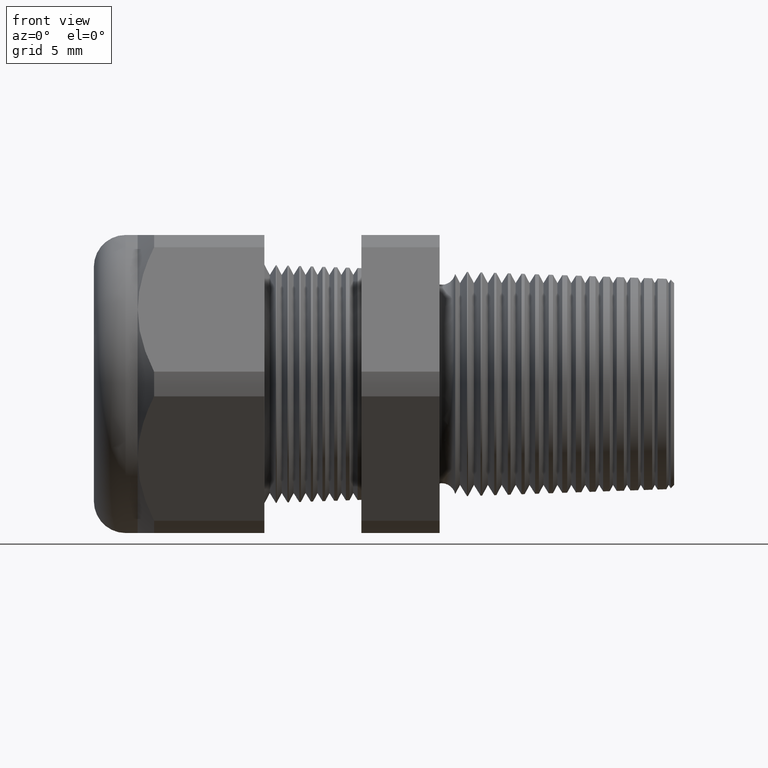
[diagram: clean part render]
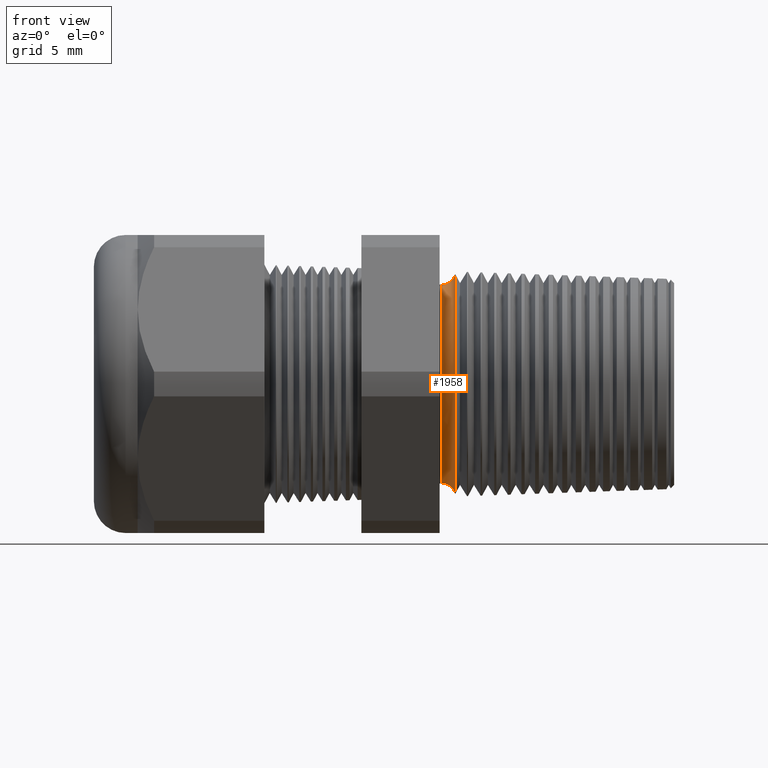
[diagram: same view with one face highlighted and labeled with its STEP entity id]
A machine part, front view. The second image highlights one B-rep face of the part: STEP entity #1958.
In plain terms, the highlighted toroidal blend (fillet) surface has major radius 7.229 mm and minor (blend) radius 0.889 mm.
Its self-contained STEP definition (entity closure, byte-faithful):
#1920 = EDGE_CURVE ( 'NONE', #1921, #1992, #5472, .T. ) ;
#1921 = VERTEX_POINT ( 'NONE', #5467 ) ;
#1955 = ORIENTED_EDGE ( 'NONE', *, *, #1956, .F. ) ;
#1956 = EDGE_CURVE ( 'NONE', #1921, #1978, #5490, .T. ) ;
#1958 = ADVANCED_FACE ( 'NONE', ( #5479 ), #5478, .F. ) ;
#1977 = EDGE_CURVE ( 'NONE', #1978, #1979, #5564, .T. ) ;
#1978 = VERTEX_POINT ( 'NONE', #5560 ) ;
#1979 = VERTEX_POINT ( 'NONE', #5559 ) ;
#1992 = VERTEX_POINT ( 'NONE', #5547 ) ;
#2021 = ORIENTED_EDGE ( 'NONE', *, *, #1920, .T. ) ;
#2023 = ORIENTED_EDGE ( 'NONE', *, *, #2028, .T. ) ;
#2028 = EDGE_CURVE ( 'NONE', #1992, #1979, #5621, .T. ) ;
#2029 = ORIENTED_EDGE ( 'NONE', *, *, #1977, .F. ) ;
#2031 = EDGE_LOOP ( 'NONE', ( #2021, #2023, #2029, #1955 ) ) ;
#5467 = CARTESIAN_POINT ( 'NONE',  ( -0.2708719432804220800, 0.0000000000000000000, 0.2768408695648931800 ) ) ;
#5468 = DIRECTION ( 'NONE',  ( 0.0000000000000000000, 1.224646799147352700E-016, 1.000000000000000000 ) ) ;
#5469 = DIRECTION ( 'NONE',  ( 0.0000000000000000000, 1.000000000000000000, -1.224646799147353200E-016 ) ) ;
#5470 = CARTESIAN_POINT ( 'NONE',  ( -0.3049999999999999400, 3.485401308899047800E-017, 0.2846046150878539000 ) ) ;
#5471 = AXIS2_PLACEMENT_3D ( 'NONE', #5470, #5469, #5468 ) ;
#5472 = CIRCLE ( 'NONE', #5471, 0.03499999999999996900 ) ;
#5478 = TOROIDAL_SURFACE ( 'NONE', #5539, 0.2846046150878539000, 0.03499999999999996200 ) ;
#5479 = FACE_OUTER_BOUND ( 'NONE', #2031, .T. ) ;
#5486 = DIRECTION ( 'NONE',  ( 0.0000000000000000000, 0.0000000000000000000, 1.000000000000000000 ) ) ;
#5487 = DIRECTION ( 'NONE',  ( 1.000000000000000000, 0.0000000000000000000, 0.0000000000000000000 ) ) ;
#5488 = CARTESIAN_POINT ( 'NONE',  ( -0.2708719432804220800, 0.0000000000000000000, 0.0000000000000000000 ) ) ;
#5489 = AXIS2_PLACEMENT_3D ( 'NONE', #5488, #5487, #5486 ) ;
#5490 = CIRCLE ( 'NONE', #5489, 0.2768408695648932300 ) ;
#5536 = DIRECTION ( 'NONE',  ( 0.0000000000000000000, 0.0000000000000000000, -1.000000000000000000 ) ) ;
#5537 = DIRECTION ( 'NONE',  ( 1.000000000000000000, 0.0000000000000000000, 0.0000000000000000000 ) ) ;
#5538 = CARTESIAN_POINT ( 'NONE',  ( -0.3049999999999999400, 0.0000000000000000000, 0.0000000000000000000 ) ) ;
#5539 = AXIS2_PLACEMENT_3D ( 'NONE', #5538, #5537, #5536 ) ;
#5547 = CARTESIAN_POINT ( 'NONE',  ( -0.3049999999999999400, 3.056774929197474500E-017, 0.2496046150878539200 ) ) ;
#5559 = CARTESIAN_POINT ( 'NONE',  ( -0.3049999999999999400, 0.0000000000000000000, -0.2496046150878539200 ) ) ;
#5560 = CARTESIAN_POINT ( 'NONE',  ( -0.2708719432804220800, 3.390322847858163700E-017, -0.2768408695648931800 ) ) ;
#5561 = DIRECTION ( 'NONE',  ( 0.0000000000000000000, 0.0000000000000000000, -1.000000000000000000 ) ) ;
#5562 = DIRECTION ( 'NONE',  ( 0.0000000000000000000, -1.000000000000000000, 0.0000000000000000000 ) ) ;
#5563 = AXIS2_PLACEMENT_3D ( 'NONE', #5570, #5562, #5561 ) ;
#5564 = CIRCLE ( 'NONE', #5563, 0.03499999999999996900 ) ;
#5570 = CARTESIAN_POINT ( 'NONE',  ( -0.3049999999999999400, 0.0000000000000000000, -0.2846046150878539000 ) ) ;
#5617 = DIRECTION ( 'NONE',  ( 0.0000000000000000000, 0.0000000000000000000, -1.000000000000000000 ) ) ;
#5618 = DIRECTION ( 'NONE',  ( 1.000000000000000000, 0.0000000000000000000, 0.0000000000000000000 ) ) ;
#5619 = CARTESIAN_POINT ( 'NONE',  ( -0.3049999999999999400, 0.0000000000000000000, 0.0000000000000000000 ) ) ;
#5620 = AXIS2_PLACEMENT_3D ( 'NONE', #5619, #5618, #5617 ) ;
#5621 = CIRCLE ( 'NONE', #5620, 0.2496046150878539200 ) ;